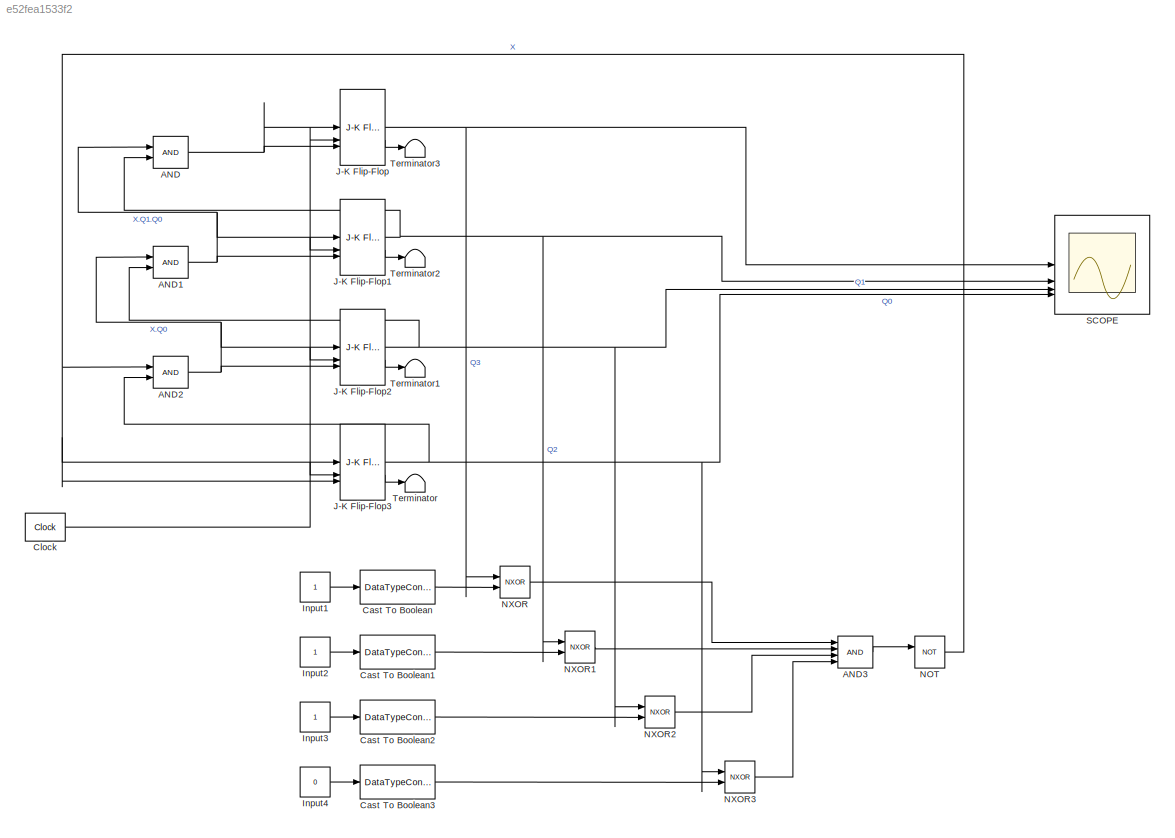
MODEL slx_e52fea1533f2
KIND model
CONFIG AbsTol = auto
CONFIG EnableMultiTasking = off
CONFIG FixedStep = auto
CONFIG MaxStep = auto
CONFIG MinStep = auto
CONFIG RelTol = 1e-3
CONFIG SampleTimeConstraint = Unconstrained
CONFIG SolverName = VariableStepAuto
CONFIG StartTime = 0.0
CONFIG StopTime = 32
BLOCK [Logic] AND
  AllPortsSameDT = off
  IconShape = distinctive
  OutDataTypeStr = boolean
BLOCK [Logic] AND1
  AllPortsSameDT = off
  IconShape = distinctive
  OutDataTypeStr = boolean
BLOCK [Logic] AND2
  AllPortsSameDT = off
  IconShape = distinctive
  OutDataTypeStr = boolean
BLOCK [Logic] AND3
  AllPortsSameDT = off
  IconShape = distinctive
  Inputs = 4
  OutDataTypeStr = boolean
BLOCK [DataTypeConversion] Cast To Boolean
  OutDataTypeStr = boolean
  RndMeth = Floor
  SaturateOnIntegerOverflow = off
BLOCK [DataTypeConversion] Cast To Boolean1
  OutDataTypeStr = boolean
  RndMeth = Floor
  SaturateOnIntegerOverflow = off
BLOCK [DataTypeConversion] Cast To Boolean2
  OutDataTypeStr = boolean
  RndMeth = Floor
  SaturateOnIntegerOverflow = off
BLOCK [DataTypeConversion] Cast To Boolean3
  OutDataTypeStr = boolean
  RndMeth = Floor
  SaturateOnIntegerOverflow = off
BLOCK [Reference] Clock  REF=simulink_extras/Flip Flops/Clock
  SourceBlock = simulink_extras/Flip Flops/Clock
  SourceType = Digital clock
BLOCK [Constant] Input1
BLOCK [Constant] Input2
BLOCK [Constant] Input3
BLOCK [Constant] Input4
  Value = 0
BLOCK [Reference] J-K Flip-Flop  REF=simulink_extras/Flip Flops/J-K
Flip-Flop
  SourceBlock = simulink_extras/Flip Flops/J-K\nFlip-Flop
  SourceType = JKFlipFlop
BLOCK [Reference] J-K Flip-Flop1  REF=simulink_extras/Flip Flops/J-K
Flip-Flop
  SourceBlock = simulink_extras/Flip Flops/J-K\nFlip-Flop
  SourceType = JKFlipFlop
BLOCK [Reference] J-K Flip-Flop2  REF=simulink_extras/Flip Flops/J-K
Flip-Flop
  SourceBlock = simulink_extras/Flip Flops/J-K\nFlip-Flop
  SourceType = JKFlipFlop
BLOCK [Reference] J-K Flip-Flop3  REF=simulink_extras/Flip Flops/J-K
Flip-Flop
  SourceBlock = simulink_extras/Flip Flops/J-K\nFlip-Flop
  SourceType = JKFlipFlop
BLOCK [Logic] NOT
  AllPortsSameDT = off
  IconShape = distinctive
  Operator = NOT
  OutDataTypeStr = boolean
BLOCK [Logic] NXOR
  AllPortsSameDT = off
  IconShape = distinctive
  Operator = NXOR
  OutDataTypeStr = boolean
BLOCK [Logic] NXOR1
  AllPortsSameDT = off
  IconShape = distinctive
  Operator = NXOR
  OutDataTypeStr = boolean
BLOCK [Logic] NXOR2
  AllPortsSameDT = off
  IconShape = distinctive
  Operator = NXOR
  OutDataTypeStr = boolean
BLOCK [Logic] NXOR3
  AllPortsSameDT = off
  IconShape = distinctive
  Operator = NXOR
  OutDataTypeStr = boolean
BLOCK [Scope] SCOPE
  Floating = off
  NumInputPorts = 4
  ScopeSpecificationString = Simulink.scopes.TimeScopeBlockCfg('CurrentConfiguration', extmgr.ConfigurationSet(extmgr.Configuration('Core','General UI',true),extmgr.Configuration('Core','Source UI',true),extmgr.Configuration('Sources','WiredSimulink',true,'DataLoggingVariableName','ScopeData1'),extmgr.Configuration('Visuals','Time Domain',true,'SerializedDisplays',{struct('MinYLimReal','-0.125','MaxYLimReal','1.125','YLabelRe...<+3411ch>
BLOCK [Terminator] Terminator
BLOCK [Terminator] Terminator1
BLOCK [Terminator] Terminator2
BLOCK [Terminator] Terminator3
NET AND1:1 -> AND:1, J-K Flip-Flop1:1, J-K Flip-Flop1:3
NET AND2:1 -> AND1:1, J-K Flip-Flop2:1, J-K Flip-Flop2:3
LINE AND3:1 -> NOT:1
NET AND:1 -> J-K Flip-Flop:1, J-K Flip-Flop:3
LINE Cast To Boolean1:1 -> NXOR1:2
LINE Cast To Boolean2:1 -> NXOR2:2
LINE Cast To Boolean3:1 -> NXOR3:2
LINE Cast To Boolean:1 -> NXOR:2
NET Clock:1 -> J-K Flip-Flop1:2, J-K Flip-Flop2:2, J-K Flip-Flop3:2, J-K Flip-Flop:2
LINE Input1:1 -> Cast To Boolean:1
LINE Input2:1 -> Cast To Boolean1:1
LINE Input3:1 -> Cast To Boolean2:1
LINE Input4:1 -> Cast To Boolean3:1
NET J-K Flip-Flop1:1 -> AND:2, NXOR1:1, SCOPE:2
LINE J-K Flip-Flop1:2 -> Terminator2:1
NET J-K Flip-Flop2:1 -> AND1:2, NXOR2:1, SCOPE:3
LINE J-K Flip-Flop2:2 -> Terminator1:1
NET J-K Flip-Flop3:1 -> AND2:2, NXOR3:1, SCOPE:4
LINE J-K Flip-Flop3:2 -> Terminator:1
NET J-K Flip-Flop:1 -> NXOR:1, SCOPE:1
LINE J-K Flip-Flop:2 -> Terminator3:1
NET NOT:1 -> AND2:1, J-K Flip-Flop3:1, J-K Flip-Flop3:3
LINE NXOR1:1 -> AND3:2
LINE NXOR2:1 -> AND3:3
LINE NXOR3:1 -> AND3:4
LINE NXOR:1 -> AND3:1
note: NET lines group one-source signal fan-out (src -> all destinations, sorted); 1:1 wires keep LINE
